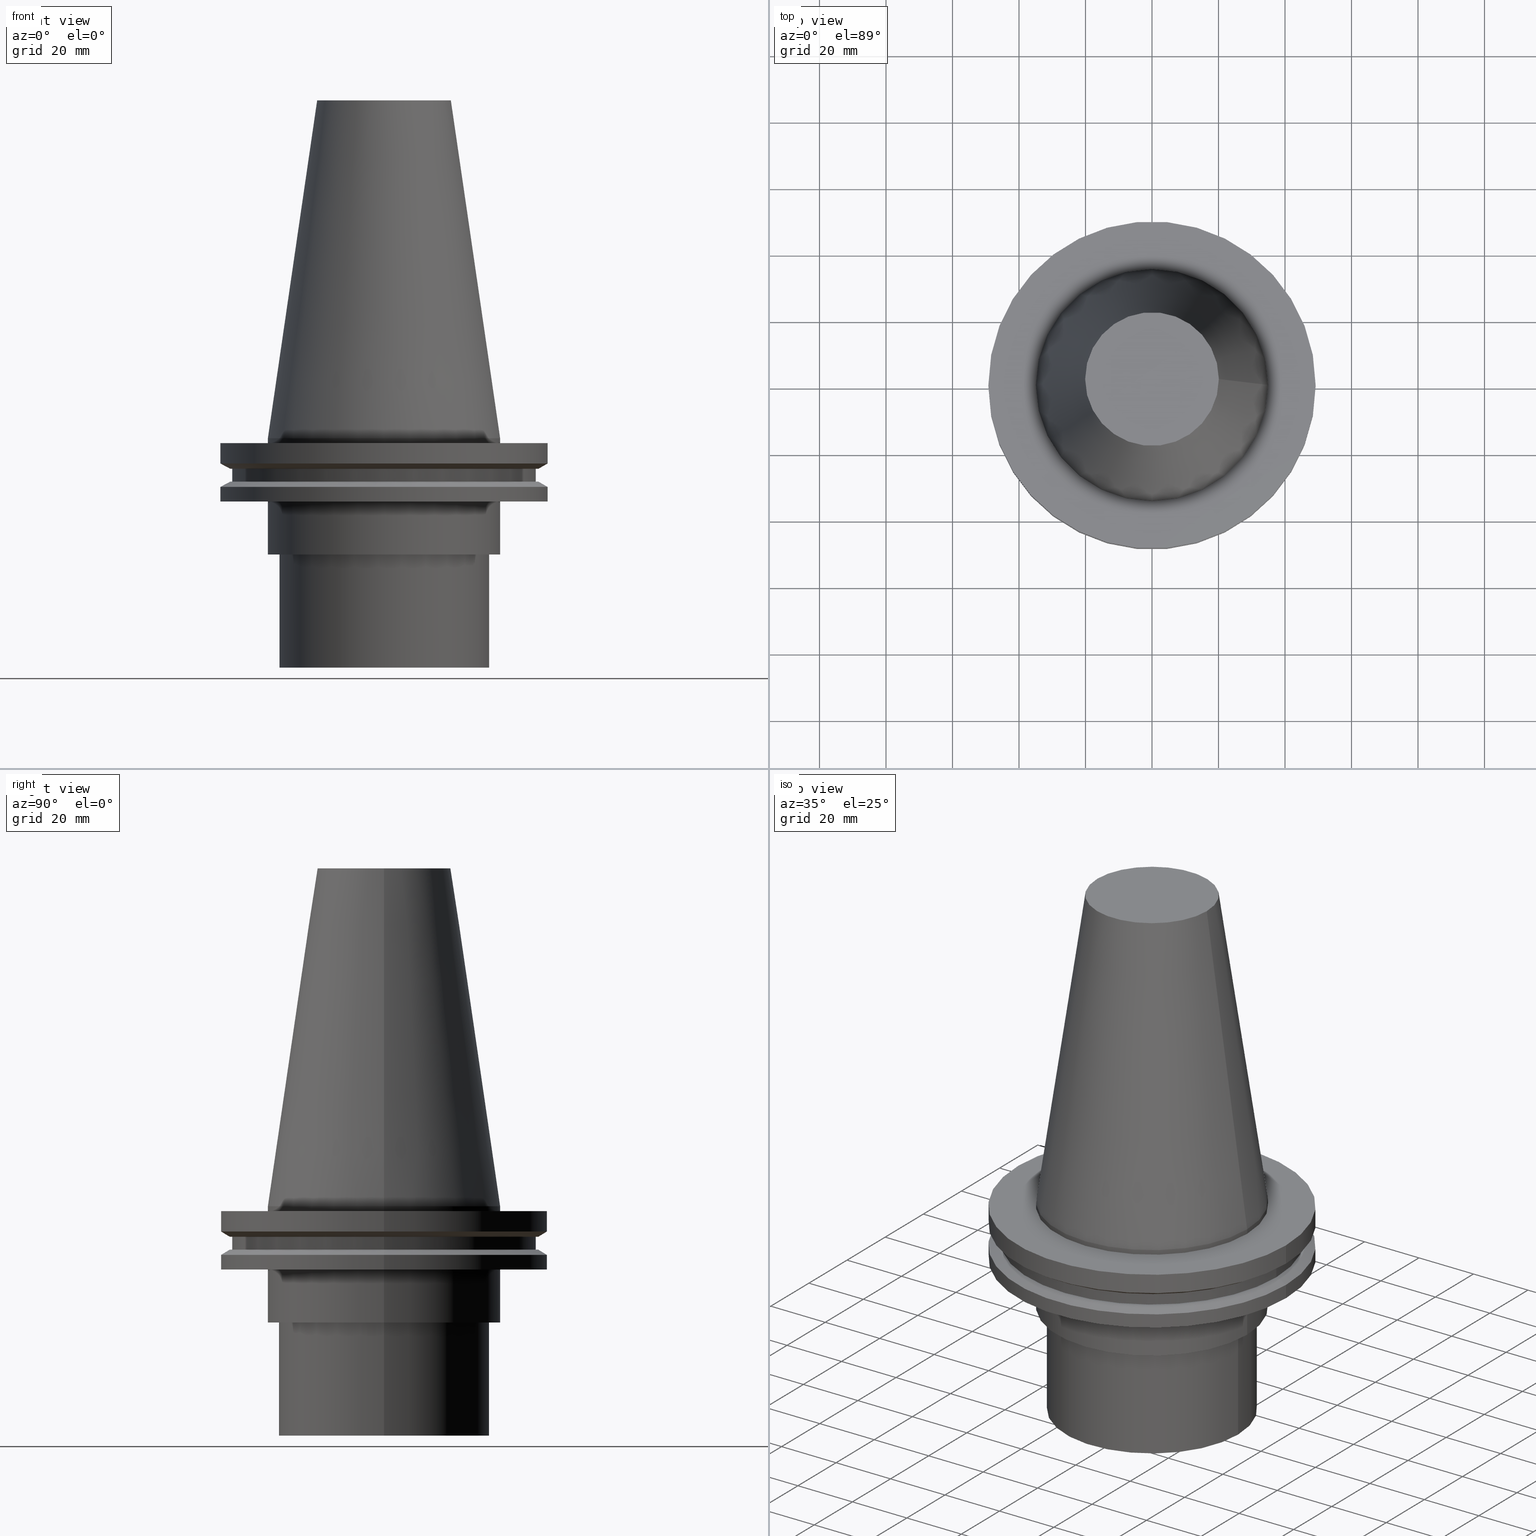
[diagram: canonical four-view strip — front | top / right | iso, engineering-drawing reading convention]
A machine part, canonical four-view strip (front | top / right | iso — engineering-drawing reading convention). The complete STEP part file that produces these views, byte-faithful:
ISO-10303-21;
HEADER;
FILE_DESCRIPTION (( 'STEP AP203' ),
    '1' );
FILE_NAME ('11.326.662.stp',
    '2022-03-09T14:52:34',
    ( '' ),
    ( '' ),
    'SwSTEP 2.0',
    'SolidWorks 2021',
    '' );
FILE_SCHEMA (( 'CONFIG_CONTROL_DESIGN' ));
ENDSEC;

DATA;
#1 = DIRECTION ( 'NONE',  ( 0.000000000000000000, 0.000000000000000000, -1.000000000000000000 ) ) ;
#2 = DIRECTION ( 'NONE',  ( 0.000000000000000000, 0.000000000000000000, -1.000000000000000000 ) ) ;
#3 = ADVANCED_FACE ( 'NONE', ( #237, #121 ), #364, .F. ) ;
#4 = COORDINATED_UNIVERSAL_TIME_OFFSET ( 6, 0, .BEHIND. ) ;
#5 = PLANE ( 'NONE',  #170 ) ;
#6 = AXIS2_PLACEMENT_3D ( 'NONE', #171, #258, #19 ) ;
#7 = AXIS2_PLACEMENT_3D ( 'NONE', #339, #12, #195 ) ;
#8 = DIRECTION ( 'NONE',  ( 1.000000000000000000, 0.000000000000000000, 0.000000000000000000 ) ) ;
#9 = CLOSED_SHELL ( 'NONE', ( #164, #387, #276, #153, #233, #264, #188, #3, #318, #39, #82, #255, #62, #297, #116, #69 ) ) ;
#10 = CARTESIAN_POINT ( 'NONE',  ( 0.000000000000000000, 0.000000000000000000, -9.204999999999991189 ) ) ;
#11 = APPROVAL ( #30, 'UNSPECIFIED' ) ;
#12 = DIRECTION ( 'NONE',  ( -0.000000000000000000, -0.000000000000000000, 1.000000000000000000 ) ) ;
#13 = SECURITY_CLASSIFICATION ( '', '', #248 ) ;
#14 = CONICAL_SURFACE ( 'NONE', #36, 34.92499999999999005, 0.1448138465474119452 ) ;
#15 = FACE_OUTER_BOUND ( 'NONE', #328, .T. ) ;
#16 = VERTEX_POINT ( 'NONE', #137 ) ;
#17 = DIRECTION ( 'NONE',  ( 1.000000000000000000, 0.000000000000000000, 0.000000000000000000 ) ) ;
#18 = LOCAL_TIME ( 8, 52, 34.00000000000000000, #90 ) ;
#19 = DIRECTION ( 'NONE',  ( 1.000000000000000000, 0.000000000000000000, 0.000000000000000000 ) ) ;
#20 = ORIENTED_EDGE ( 'NONE', *, *, #72, .F. ) ;
#21 = DIRECTION ( 'NONE',  ( 1.000000000000000000, 0.000000000000000000, 0.000000000000000000 ) ) ;
#22 = CARTESIAN_POINT ( 'NONE',  ( 31.63500000000000512, 0.000000000000000000, -69.00000000000001421 ) ) ;
#23 = ORIENTED_EDGE ( 'NONE', *, *, #284, .F. ) ;
#24 = PERSON_AND_ORGANIZATION ( #303, #222 ) ;
#25 = AXIS2_PLACEMENT_3D ( 'NONE', #311, #163, #132 ) ;
#26 = ORIENTED_EDGE ( 'NONE', *, *, #352, .T. ) ;
#27 = VERTEX_POINT ( 'NONE', #22 ) ;
#28 = ORIENTED_EDGE ( 'NONE', *, *, #136, .F. ) ;
#29 = EDGE_LOOP ( 'NONE', ( #334 ) ) ;
#30 = APPROVAL_STATUS ( 'not_yet_approved' ) ;
#31 = PLANE ( 'NONE',  #177 ) ;
#32 = SHAPE_DEFINITION_REPRESENTATION ( #329, #274 ) ;
#33 = CC_DESIGN_PERSON_AND_ORGANIZATION_ASSIGNMENT ( #327, #390, ( #52 ) ) ;
#34 = FACE_BOUND ( 'NONE', #267, .T. ) ;
#35 = FACE_OUTER_BOUND ( 'NONE', #169, .T. ) ;
#36 = AXIS2_PLACEMENT_3D ( 'NONE', #373, #220, #156 ) ;
#37 = COORDINATED_UNIVERSAL_TIME_OFFSET ( 6, 0, .BEHIND. ) ;
#38 = CARTESIAN_POINT ( 'NONE',  ( 0.000000000000000000, 0.000000000000000000, -13.05499999999999794 ) ) ;
#39 = ADVANCED_FACE ( 'NONE', ( #178, #180 ), #302, .F. ) ;
#40 = PERSON_AND_ORGANIZATION_ROLE ( 'creator' ) ;
#41 = DIRECTION ( 'NONE',  ( -0.000000000000000000, -0.000000000000000000, 1.000000000000000000 ) ) ;
#42 = DIRECTION ( 'NONE',  ( -1.000000000000000000, 0.000000000000000000, -0.000000000000000000 ) ) ;
#43 = CIRCLE ( 'NONE', #176, 34.92499999999999005 ) ;
#44 = DIRECTION ( 'NONE',  ( 1.000000000000000000, 0.000000000000000000, 0.000000000000000000 ) ) ;
#45 = DIRECTION ( 'NONE',  ( 1.000000000000000000, 0.000000000000000000, 0.000000000000000000 ) ) ;
#46 = CARTESIAN_POINT ( 'NONE',  ( 0.000000000000000000, 0.000000000000000000, 101.5999999999999943 ) ) ;
#47 = AXIS2_PLACEMENT_3D ( 'NONE', #241, #357, #205 ) ;
#48 = DIRECTION ( 'NONE',  ( 0.000000000000000000, -0.000000000000000000, 1.000000000000000000 ) ) ;
#49 = ORIENTED_EDGE ( 'NONE', *, *, #213, .F. ) ;
#50 = APPLICATION_PROTOCOL_DEFINITION ( 'international standard', 'config_control_design', 1994, #80 ) ;
#51 = EDGE_LOOP ( 'NONE', ( #91 ) ) ;
#52 = PRODUCT ( '11.326.662', '11.326.662', '', ( #335 ) ) ;
#53 = CIRCLE ( 'NONE', #360, 45.64500000000000313 ) ;
#54 = CARTESIAN_POINT ( 'NONE',  ( 46.43919780457007818, 0.000000000000000000, -9.204999999999991189 ) ) ;
#55 = DIRECTION ( 'NONE',  ( 0.000000000000000000, 0.000000000000000000, -1.000000000000000000 ) ) ;
#56 = DATE_AND_TIME ( #211, #18 ) ;
#57 = EDGE_LOOP ( 'NONE', ( #28 ) ) ;
#58 = DIRECTION ( 'NONE',  ( 1.000000000000000000, 0.000000000000000000, 0.000000000000000000 ) ) ;
#59 = PERSON_AND_ORGANIZATION ( #303, #222 ) ;
#60 = AXIS2_PLACEMENT_3D ( 'NONE', #351, #167, #201 ) ;
#61 = FACE_OUTER_BOUND ( 'NONE', #212, .T. ) ;
#62 = ADVANCED_FACE ( 'NONE', ( #183, #305 ), #31, .F. ) ;
#63 = UNCERTAINTY_MEASURE_WITH_UNIT (LENGTH_MEASURE( 1.000000000000000082E-05 ), #304, 'distance_accuracy_value', 'NONE');
#64 = FACE_OUTER_BOUND ( 'NONE', #262, .T. ) ;
#65 = APPROVAL_DATE_TIME ( #221, #86 ) ;
#66 = DIRECTION ( 'NONE',  ( 1.000000000000000000, 0.000000000000000000, 0.000000000000000000 ) ) ;
#67 = CC_DESIGN_SECURITY_CLASSIFICATION ( #13, ( #362 ) ) ;
#68 = DIRECTION ( 'NONE',  ( -0.000000000000000000, -0.000000000000000000, 1.000000000000000000 ) ) ;
#69 = ADVANCED_FACE ( 'NONE', ( #219 ), #5, .F. ) ;
#70 = DIRECTION ( 'NONE',  ( 1.000000000000000000, 0.000000000000000000, 0.000000000000000000 ) ) ;
#71 = DIRECTION ( 'NONE',  ( 1.000000000000000000, 0.000000000000000000, 0.000000000000000000 ) ) ;
#72 = EDGE_CURVE ( 'NONE', #165, #165, #306, .T. ) ;
#73 = VERTEX_POINT ( 'NONE', #166 ) ;
#74 = AXIS2_PLACEMENT_3D ( 'NONE', #292, #48, #21 ) ;
#75 = PLANE ( 'NONE',  #140 ) ;
#76 = AXIS2_PLACEMENT_3D ( 'NONE', #273, #93, #58 ) ;
#77 = FACE_OUTER_BOUND ( 'NONE', #29, .T. ) ;
#78 = AXIS2_PLACEMENT_3D ( 'NONE', #149, #55, #391 ) ;
#79 = DIRECTION ( 'NONE',  ( 0.000000000000000000, 0.000000000000000000, -1.000000000000000000 ) ) ;
#80 = APPLICATION_CONTEXT ( 'configuration controlled 3d designs of mechanical parts and assemblies' ) ;
#81 = ORIENTED_EDGE ( 'NONE', *, *, #370, .F. ) ;
#82 = ADVANCED_FACE ( 'NONE', ( #346, #377 ), #245, .T. ) ;
#83 = AXIS2_PLACEMENT_3D ( 'NONE', #46, #288, #347 ) ;
#84 = VERTEX_POINT ( 'NONE', #363 ) ;
#85 = ORIENTED_EDGE ( 'NONE', *, *, #111, .T. ) ;
#86 = APPROVAL ( #94, 'UNSPECIFIED' ) ;
#87 = CARTESIAN_POINT ( 'NONE',  ( 46.43919780457007818, 0.000000000000000000, -13.05499999999999794 ) ) ;
#88 = ORIENTED_EDGE ( 'NONE', *, *, #224, .T. ) ;
#89 = CIRCLE ( 'NONE', #106, 34.92499999999999716 ) ;
#90 = COORDINATED_UNIVERSAL_TIME_OFFSET ( 6, 0, .BEHIND. ) ;
#91 = ORIENTED_EDGE ( 'NONE', *, *, #284, .T. ) ;
#92 = VERTEX_POINT ( 'NONE', #87 ) ;
#93 = DIRECTION ( 'NONE',  ( 0.000000000000000000, -0.000000000000000000, 1.000000000000000000 ) ) ;
#94 = APPROVAL_STATUS ( 'not_yet_approved' ) ;
#95 = EDGE_LOOP ( 'NONE', ( #300 ) ) ;
#96 = CIRCLE ( 'NONE', #102, 49.21499999999998920 ) ;
#97 = DIRECTION ( 'NONE',  ( -0.000000000000000000, -0.000000000000000000, 1.000000000000000000 ) ) ;
#98 = DIRECTION ( 'NONE',  ( 1.000000000000000000, 0.000000000000000000, 0.000000000000000000 ) ) ;
#99 = FACE_OUTER_BOUND ( 'NONE', #209, .T. ) ;
#100 = APPROVAL_ROLE ( '' ) ;
#101 = CARTESIAN_POINT ( 'NONE',  ( 0.000000000000000000, 0.000000000000000000, -7.602389855251287187 ) ) ;
#102 = AXIS2_PLACEMENT_3D ( 'NONE', #261, #196, #383 ) ;
#103 = FACE_OUTER_BOUND ( 'NONE', #57, .T. ) ;
#104 = DIRECTION ( 'NONE',  ( 0.000000000000000000, -0.000000000000000000, 1.000000000000000000 ) ) ;
#105 = FACE_OUTER_BOUND ( 'NONE', #254, .T. ) ;
#106 = AXIS2_PLACEMENT_3D ( 'NONE', #215, #41, #8 ) ;
#107 = DESIGN_CONTEXT ( 'detailed design', #80, 'design' ) ;
#108 = CYLINDRICAL_SURFACE ( 'NONE', #251, 49.21499999999998920 ) ;
#109 = EDGE_LOOP ( 'NONE', ( #23 ) ) ;
#110 = PLANE ( 'NONE',  #345 ) ;
#111 = EDGE_CURVE ( 'NONE', #73, #73, #340, .T. ) ;
#112 = ORIENTED_EDGE ( 'NONE', *, *, #224, .F. ) ;
#113 = CIRCLE ( 'NONE', #312, 49.21500000000000341 ) ;
#114 =( NAMED_UNIT ( * ) PLANE_ANGLE_UNIT ( ) SI_UNIT ( $, .RADIAN. ) );
#115 = EDGE_LOOP ( 'NONE', ( #26 ) ) ;
#116 = ADVANCED_FACE ( 'NONE', ( #64, #35 ), #308, .T. ) ;
#117 = ORIENTED_EDGE ( 'NONE', *, *, #200, .T. ) ;
#118 = APPROVAL_ROLE ( '' ) ;
#119 = EDGE_LOOP ( 'NONE', ( #367 ) ) ;
#120 = AXIS2_PLACEMENT_3D ( 'NONE', #283, #226, #319 ) ;
#121 = FACE_OUTER_BOUND ( 'NONE', #386, .T. ) ;
#122 = CALENDAR_DATE ( 2022, 9, 3 ) ;
#123 = ORIENTED_EDGE ( 'NONE', *, *, #146, .F. ) ;
#124 = PERSON_AND_ORGANIZATION_ROLE ( 'design_supplier' ) ;
#125 = DIRECTION ( 'NONE',  ( -0.000000000000000000, -0.000000000000000000, 1.000000000000000000 ) ) ;
#126 = CIRCLE ( 'NONE', #60, 20.10819343178871321 ) ;
#127 = DIRECTION ( 'NONE',  ( -0.000000000000000000, -0.000000000000000000, 1.000000000000000000 ) ) ;
#128 = CC_DESIGN_PERSON_AND_ORGANIZATION_ASSIGNMENT ( #338, #307, ( #13 ) ) ;
#129 = DIRECTION ( 'NONE',  ( 1.000000000000000000, 0.000000000000000000, 0.000000000000000000 ) ) ;
#130 = DIRECTION ( 'NONE',  ( -0.000000000000000000, -0.000000000000000000, 1.000000000000000000 ) ) ;
#131 = LOCAL_TIME ( 8, 52, 34.00000000000000000, #372 ) ;
#132 = DIRECTION ( 'NONE',  ( 1.000000000000000000, 0.000000000000000000, 0.000000000000000000 ) ) ;
#133 = AXIS2_PLACEMENT_3D ( 'NONE', #247, #97, #189 ) ;
#134 = CARTESIAN_POINT ( 'NONE',  ( 31.63500000000000512, 0.000000000000000000, -35.00000000000000000 ) ) ;
#135 = EDGE_LOOP ( 'NONE', ( #123 ) ) ;
#136 = EDGE_CURVE ( 'NONE', #16, #16, #317, .T. ) ;
#137 = CARTESIAN_POINT ( 'NONE',  ( 34.92499999999999005, 0.000000000000000000, 0.000000000000000000 ) ) ;
#138 = DIRECTION ( 'NONE',  ( -0.000000000000000000, -0.000000000000000000, 1.000000000000000000 ) ) ;
#139 = ORIENTED_EDGE ( 'NONE', *, *, #146, .T. ) ;
#140 = AXIS2_PLACEMENT_3D ( 'NONE', #199, #104, #45 ) ;
#141 = EDGE_CURVE ( 'NONE', #256, #256, #376, .T. ) ;
#142 = FACE_OUTER_BOUND ( 'NONE', #268, .T. ) ;
#143 = ORIENTED_EDGE ( 'NONE', *, *, #141, .T. ) ;
#144 = DIRECTION ( 'NONE',  ( -0.000000000000000000, -0.000000000000000000, 1.000000000000000000 ) ) ;
#145 = EDGE_LOOP ( 'NONE', ( #49 ) ) ;
#146 = EDGE_CURVE ( 'NONE', #333, #333, #89, .T. ) ;
#147 = DATE_AND_TIME ( #359, #381 ) ;
#148 = EDGE_LOOP ( 'NONE', ( #85 ) ) ;
#149 = CARTESIAN_POINT ( 'NONE',  ( 0.000000000000000000, 45.64500000000000313, -13.05499999999999794 ) ) ;
#150 = CARTESIAN_POINT ( 'NONE',  ( 45.64500000000000313, 0.000000000000000000, -9.204999999999991189 ) ) ;
#151 = ORIENTED_EDGE ( 'NONE', *, *, #326, .T. ) ;
#152 = CIRCLE ( 'NONE', #120, 46.43919780457007818 ) ;
#153 = ADVANCED_FACE ( 'NONE', ( #343, #252 ), #371, .T. ) ;
#154 = CARTESIAN_POINT ( 'NONE',  ( 34.92499999999999716, 0.000000000000000000, -35.00000000000000000 ) ) ;
#155 = CARTESIAN_POINT ( 'NONE',  ( 0.000000000000000000, 49.21499999999999631, -1.499999999999992895 ) ) ;
#156 = DIRECTION ( 'NONE',  ( -1.000000000000000000, 0.000000000000000000, 0.000000000000000000 ) ) ;
#157 = DATE_TIME_ROLE ( 'classification_date' ) ;
#158 = CARTESIAN_POINT ( 'NONE',  ( 0.000000000000000000, 0.000000000000000000, 0.000000000000000000 ) ) ;
#159 = CC_DESIGN_PERSON_AND_ORGANIZATION_ASSIGNMENT ( #366, #124, ( #362 ) ) ;
#160 = AXIS2_PLACEMENT_3D ( 'NONE', #342, #68, #66 ) ;
#161 = DIRECTION ( 'NONE',  ( -1.000000000000000000, 0.000000000000000000, -0.000000000000000000 ) ) ;
#162 = DIRECTION ( 'NONE',  ( 1.000000000000000000, 0.000000000000000000, 0.000000000000000000 ) ) ;
#163 = DIRECTION ( 'NONE',  ( -0.000000000000000000, -0.000000000000000000, 1.000000000000000000 ) ) ;
#164 = ADVANCED_FACE ( 'NONE', ( #34, #61 ), #14, .T. ) ;
#165 = VERTEX_POINT ( 'NONE', #134 ) ;
#166 = CARTESIAN_POINT ( 'NONE',  ( 49.21499999999999631, 0.000000000000000000, -1.499999999999987566 ) ) ;
#167 = DIRECTION ( 'NONE',  ( -0.000000000000000000, -0.000000000000000000, 1.000000000000000000 ) ) ;
#168 = FACE_OUTER_BOUND ( 'NONE', #119, .T. ) ;
#169 = EDGE_LOOP ( 'NONE', ( #151 ) ) ;
#170 = AXIS2_PLACEMENT_3D ( 'NONE', #309, #187, #129 ) ;
#171 = CARTESIAN_POINT ( 'NONE',  ( 0.000000000000000000, 0.000000000000000000, -19.04999999999999716 ) ) ;
#172 = CARTESIAN_POINT ( 'NONE',  ( 34.92499999999999005, 0.000000000000000000, -1.499999999999987566 ) ) ;
#173 = EDGE_LOOP ( 'NONE', ( #139 ) ) ;
#174 = PERSON_AND_ORGANIZATION ( #303, #222 ) ;
#175 = ORIENTED_EDGE ( 'NONE', *, *, #279, .F. ) ;
#176 = AXIS2_PLACEMENT_3D ( 'NONE', #280, #125, #218 ) ;
#177 = AXIS2_PLACEMENT_3D ( 'NONE', #155, #1, #161 ) ;
#178 = FACE_OUTER_BOUND ( 'NONE', #109, .T. ) ;
#179 = DATE_TIME_ROLE ( 'creation_date' ) ;
#180 = FACE_BOUND ( 'NONE', #389, .T. ) ;
#181 = CC_DESIGN_DATE_AND_TIME_ASSIGNMENT ( #190, #157, ( #13 ) ) ;
#182 = CARTESIAN_POINT ( 'NONE',  ( 45.64500000000000313, 0.000000000000000000, -13.05499999999999794 ) ) ;
#183 = FACE_BOUND ( 'NONE', #145, .T. ) ;
#184 = APPLICATION_CONTEXT ( 'configuration controlled 3d designs of mechanical parts and assemblies' ) ;
#185 = AXIS2_PLACEMENT_3D ( 'NONE', #289, #138, #71 ) ;
#186 = PERSON_AND_ORGANIZATION ( #303, #222 ) ;
#187 = DIRECTION ( 'NONE',  ( 0.000000000000000000, -0.000000000000000000, 1.000000000000000000 ) ) ;
#188 = ADVANCED_FACE ( 'NONE', ( #191, #99 ), #385, .T. ) ;
#189 = DIRECTION ( 'NONE',  ( 1.000000000000000000, 0.000000000000000000, 0.000000000000000000 ) ) ;
#190 = DATE_AND_TIME ( #214, #239 ) ;
#191 = FACE_BOUND ( 'NONE', #271, .T. ) ;
#192 = AXIS2_PLACEMENT_3D ( 'NONE', #228, #144, #320 ) ;
#193 = CARTESIAN_POINT ( 'NONE',  ( 0.000000000000000000, 0.000000000000000000, -14.65761014474876944 ) ) ;
#194 = DATE_AND_TIME ( #122, #131 ) ;
#195 = DIRECTION ( 'NONE',  ( 1.000000000000000000, 0.000000000000000000, 0.000000000000000000 ) ) ;
#196 = DIRECTION ( 'NONE',  ( -0.000000000000000000, -0.000000000000000000, 1.000000000000000000 ) ) ;
#197 = FACE_OUTER_BOUND ( 'NONE', #291, .T. ) ;
#198 = AXIS2_PLACEMENT_3D ( 'NONE', #158, #278, #315 ) ;
#199 = CARTESIAN_POINT ( 'NONE',  ( 0.000000000000000000, 34.92499999999999716, -35.00000000000000000 ) ) ;
#200 = EDGE_CURVE ( 'NONE', #92, #92, #210, .T. ) ;
#201 = DIRECTION ( 'NONE',  ( 1.000000000000000000, 0.000000000000000000, 0.000000000000000000 ) ) ;
#202 = CYLINDRICAL_SURFACE ( 'NONE', #83, 34.92499999999999005 ) ;
#203 = CC_DESIGN_APPROVAL ( #11, ( #392 ) ) ;
#204 = CARTESIAN_POINT ( 'NONE',  ( 34.92499999999999716, 0.000000000000000000, -19.04999999999999716 ) ) ;
#205 = DIRECTION ( 'NONE',  ( 1.000000000000000000, 0.000000000000000000, 0.000000000000000000 ) ) ;
#206 = ORIENTED_EDGE ( 'NONE', *, *, #136, .T. ) ;
#207 = VERTEX_POINT ( 'NONE', #234 ) ;
#208 = APPROVAL_PERSON_ORGANIZATION ( #59, #337, #374 ) ;
#209 = EDGE_LOOP ( 'NONE', ( #379 ) ) ;
#210 = CIRCLE ( 'NONE', #217, 46.43919780457007818 ) ;
#211 = CALENDAR_DATE ( 2022, 9, 3 ) ;
#212 = EDGE_LOOP ( 'NONE', ( #206 ) ) ;
#213 = EDGE_CURVE ( 'NONE', #393, #393, #43, .T. ) ;
#214 = CALENDAR_DATE ( 2022, 9, 3 ) ;
#215 = CARTESIAN_POINT ( 'NONE',  ( 0.000000000000000000, 0.000000000000000000, -35.00000000000000000 ) ) ;
#216 = EDGE_CURVE ( 'NONE', #269, #269, #53, .T. ) ;
#217 = AXIS2_PLACEMENT_3D ( 'NONE', #38, #275, #162 ) ;
#218 = DIRECTION ( 'NONE',  ( 1.000000000000000000, 0.000000000000000000, 0.000000000000000000 ) ) ;
#219 = FACE_OUTER_BOUND ( 'NONE', #296, .T. ) ;
#220 = DIRECTION ( 'NONE',  ( 0.000000000000000000, 0.000000000000000000, -1.000000000000000000 ) ) ;
#221 = DATE_AND_TIME ( #314, #257 ) ;
#222 = ORGANIZATION ( 'UNSPECIFIED', 'UNSPECIFIED', '' ) ;
#223 = DIRECTION ( 'NONE',  ( -0.000000000000000000, -0.000000000000000000, 1.000000000000000000 ) ) ;
#224 = EDGE_CURVE ( 'NONE', #301, #301, #240, .T. ) ;
#225 = FACE_OUTER_BOUND ( 'NONE', #95, .T. ) ;
#226 = DIRECTION ( 'NONE',  ( -0.000000000000000000, -0.000000000000000000, 1.000000000000000000 ) ) ;
#227 = EDGE_CURVE ( 'NONE', #299, #299, #113, .T. ) ;
#228 = CARTESIAN_POINT ( 'NONE',  ( 0.000000000000000000, 0.000000000000000000, 101.5999999999999943 ) ) ;
#229 = DIRECTION ( 'NONE',  ( -0.000000000000000000, -0.000000000000000000, 1.000000000000000000 ) ) ;
#230 = FACE_OUTER_BOUND ( 'NONE', #395, .T. ) ;
#231 = ORIENTED_EDGE ( 'NONE', *, *, #72, .T. ) ;
#232 =( NAMED_UNIT ( * ) SI_UNIT ( $, .STERADIAN. ) SOLID_ANGLE_UNIT ( ) );
#233 = ADVANCED_FACE ( 'NONE', ( #197, #382 ), #253, .F. ) ;
#234 = CARTESIAN_POINT ( 'NONE',  ( 49.21499999999998920, 0.000000000000000000, -14.65761014474876944 ) ) ;
#235 = ORIENTED_EDGE ( 'NONE', *, *, #141, .F. ) ;
#236 = APPLICATION_PROTOCOL_DEFINITION ( 'international standard', 'config_control_design', 1994, #184 ) ;
#237 = FACE_BOUND ( 'NONE', #243, .T. ) ;
#238 = COORDINATED_UNIVERSAL_TIME_OFFSET ( 6, 0, .BEHIND. ) ;
#239 = LOCAL_TIME ( 8, 52, 34.00000000000000000, #37 ) ;
#240 = CIRCLE ( 'NONE', #272, 45.64500000000000313 ) ;
#241 = CARTESIAN_POINT ( 'NONE',  ( 0.000000000000000000, 0.000000000000000000, 0.000000000000000000 ) ) ;
#242 = APPROVAL_DATE_TIME ( #194, #337 ) ;
#243 = EDGE_LOOP ( 'NONE', ( #325 ) ) ;
#244 = CARTESIAN_POINT ( 'NONE',  ( 0.000000000000000000, 0.000000000000000000, -13.05499999999999794 ) ) ;
#245 = CONICAL_SURFACE ( 'NONE', #133, 46.43919780457007818, 1.047197551196575205 ) ;
#246 = DIRECTION ( 'NONE',  ( 1.000000000000000000, 0.000000000000000000, 0.000000000000000000 ) ) ;
#247 = CARTESIAN_POINT ( 'NONE',  ( 0.000000000000000000, 0.000000000000000000, -9.204999999999991189 ) ) ;
#248 = SECURITY_CLASSIFICATION_LEVEL ( 'unclassified' ) ;
#249 = CC_DESIGN_DATE_AND_TIME_ASSIGNMENT ( #56, #179, ( #392 ) ) ;
#250 = CARTESIAN_POINT ( 'NONE',  ( 0.000000000000000000, 0.000000000000000000, -35.00000000000000000 ) ) ;
#251 = AXIS2_PLACEMENT_3D ( 'NONE', #263, #229, #17 ) ;
#252 = FACE_OUTER_BOUND ( 'NONE', #173, .T. ) ;
#253 = PLANE ( 'NONE',  #74 ) ;
#254 = EDGE_LOOP ( 'NONE', ( #112 ) ) ;
#255 = ADVANCED_FACE ( 'NONE', ( #77, #230 ), #321, .T. ) ;
#256 = VERTEX_POINT ( 'NONE', #266 ) ;
#257 = LOCAL_TIME ( 8, 52, 34.00000000000000000, #4 ) ;
#258 = DIRECTION ( 'NONE',  ( -0.000000000000000000, -0.000000000000000000, 1.000000000000000000 ) ) ;
#259 = AXIS2_PLACEMENT_3D ( 'NONE', #193, #2, #313 ) ;
#260 = ORIENTED_EDGE ( 'NONE', *, *, #352, .F. ) ;
#261 = CARTESIAN_POINT ( 'NONE',  ( 0.000000000000000000, 0.000000000000000000, -14.65761014474876944 ) ) ;
#262 = EDGE_LOOP ( 'NONE', ( #20 ) ) ;
#263 = CARTESIAN_POINT ( 'NONE',  ( 0.000000000000000000, 0.000000000000000000, 101.5999999999999943 ) ) ;
#264 = ADVANCED_FACE ( 'NONE', ( #142, #15 ), #108, .T. ) ;
#265 = EDGE_LOOP ( 'NONE', ( #260 ) ) ;
#266 = CARTESIAN_POINT ( 'NONE',  ( 49.21499999999998920, 0.000000000000000000, -19.04999999999999716 ) ) ;
#267 = EDGE_LOOP ( 'NONE', ( #175 ) ) ;
#268 = EDGE_LOOP ( 'NONE', ( #81 ) ) ;
#269 = VERTEX_POINT ( 'NONE', #182 ) ;
#270 = CC_DESIGN_APPROVAL ( #337, ( #362 ) ) ;
#271 = EDGE_LOOP ( 'NONE', ( #294 ) ) ;
#272 = AXIS2_PLACEMENT_3D ( 'NONE', #10, #130, #375 ) ;
#273 = CARTESIAN_POINT ( 'NONE',  ( 0.000000000000000000, 46.43919780457007818, -9.204999999999998295 ) ) ;
#274 = ADVANCED_BREP_SHAPE_REPRESENTATION ( '11.326.662', ( #286, #47 ), #394 ) ;
#275 = DIRECTION ( 'NONE',  ( -0.000000000000000000, -0.000000000000000000, 1.000000000000000000 ) ) ;
#276 = ADVANCED_FACE ( 'NONE', ( #378, #350 ), #75, .F. ) ;
#277 = CARTESIAN_POINT ( 'NONE',  ( 0.000000000000000000, 0.000000000000000000, 0.000000000000000000 ) ) ;
#278 = DIRECTION ( 'NONE',  ( -0.000000000000000000, -0.000000000000000000, 1.000000000000000000 ) ) ;
#279 = EDGE_CURVE ( 'NONE', #84, #84, #126, .T. ) ;
#280 = CARTESIAN_POINT ( 'NONE',  ( 0.000000000000000000, 0.000000000000000000, -1.499999999999987566 ) ) ;
#281 = DIRECTION ( 'NONE',  ( -0.000000000000000000, -0.000000000000000000, 1.000000000000000000 ) ) ;
#282 = AXIS2_PLACEMENT_3D ( 'NONE', #348, #287, #44 ) ;
#283 = CARTESIAN_POINT ( 'NONE',  ( 0.000000000000000000, 0.000000000000000000, -9.204999999999991189 ) ) ;
#284 = EDGE_CURVE ( 'NONE', #330, #330, #152, .T. ) ;
#285 = ORIENTED_EDGE ( 'NONE', *, *, #279, .T. ) ;
#286 = MANIFOLD_SOLID_BREP ( 'CKB', #9 ) ;
#287 = DIRECTION ( 'NONE',  ( -0.000000000000000000, -0.000000000000000000, 1.000000000000000000 ) ) ;
#288 = DIRECTION ( 'NONE',  ( -0.000000000000000000, -0.000000000000000000, 1.000000000000000000 ) ) ;
#289 = CARTESIAN_POINT ( 'NONE',  ( 0.000000000000000000, 0.000000000000000000, 101.5999999999999943 ) ) ;
#290 = APPROVAL_PERSON_ORGANIZATION ( #310, #86, #100 ) ;
#291 = EDGE_LOOP ( 'NONE', ( #235 ) ) ;
#292 = CARTESIAN_POINT ( 'NONE',  ( 0.000000000000000000, 49.21499999999998920, -19.04999999999999716 ) ) ;
#293 = VERTEX_POINT ( 'NONE', #204 ) ;
#294 = ORIENTED_EDGE ( 'NONE', *, *, #200, .F. ) ;
#295 = APPROVAL_DATE_TIME ( #147, #11 ) ;
#296 = EDGE_LOOP ( 'NONE', ( #332 ) ) ;
#297 = ADVANCED_FACE ( 'NONE', ( #103, #225 ), #202, .T. ) ;
#298 = CIRCLE ( 'NONE', #282, 31.63500000000000512 ) ;
#299 = VERTEX_POINT ( 'NONE', #354 ) ;
#300 = ORIENTED_EDGE ( 'NONE', *, *, #213, .T. ) ;
#301 = VERTEX_POINT ( 'NONE', #150 ) ;
#302 = PLANE ( 'NONE',  #76 ) ;
#303 = PERSON ( 'UNSPECIFIED', 'UNSPECIFIED', 'UNSPECIFIED', ('UNSPECIFIED'), ('UNSPECIFIED'), ('UNSPECIFIED') ) ;
#304 =( LENGTH_UNIT ( ) NAMED_UNIT ( * ) SI_UNIT ( .MILLI., .METRE. ) );
#305 = FACE_OUTER_BOUND ( 'NONE', #148, .T. ) ;
#306 = CIRCLE ( 'NONE', #380, 31.63500000000000512 ) ;
#307 = PERSON_AND_ORGANIZATION_ROLE ( 'classification_officer' ) ;
#308 = CYLINDRICAL_SURFACE ( 'NONE', #198, 31.63500000000000512 ) ;
#309 = CARTESIAN_POINT ( 'NONE',  ( 0.000000000000000000, 31.63500000000000512, -69.00000000000000000 ) ) ;
#310 = PERSON_AND_ORGANIZATION ( #303, #222 ) ;
#311 = CARTESIAN_POINT ( 'NONE',  ( 0.000000000000000000, 0.000000000000000000, -1.499999999999987566 ) ) ;
#312 = AXIS2_PLACEMENT_3D ( 'NONE', #101, #223, #70 ) ;
#313 = DIRECTION ( 'NONE',  ( -1.000000000000000000, 0.000000000000000000, 0.000000000000000000 ) ) ;
#314 = CALENDAR_DATE ( 2022, 9, 3 ) ;
#315 = DIRECTION ( 'NONE',  ( 1.000000000000000000, 0.000000000000000000, 0.000000000000000000 ) ) ;
#316 = FACE_OUTER_BOUND ( 'NONE', #361, .T. ) ;
#317 = CIRCLE ( 'NONE', #331, 34.92499999999999005 ) ;
#318 = ADVANCED_FACE ( 'NONE', ( #105, #168 ), #323, .T. ) ;
#319 = DIRECTION ( 'NONE',  ( 1.000000000000000000, 0.000000000000000000, 0.000000000000000000 ) ) ;
#320 = DIRECTION ( 'NONE',  ( 1.000000000000000000, 0.000000000000000000, 0.000000000000000000 ) ) ;
#321 = CYLINDRICAL_SURFACE ( 'NONE', #192, 49.21499999999999631 ) ;
#322 = CC_DESIGN_PERSON_AND_ORGANIZATION_ASSIGNMENT ( #24, #388, ( #392 ) ) ;
#323 = CYLINDRICAL_SURFACE ( 'NONE', #185, 45.64500000000000313 ) ;
#324 = APPROVAL_PERSON_ORGANIZATION ( #174, #11, #118 ) ;
#325 = ORIENTED_EDGE ( 'NONE', *, *, #216, .F. ) ;
#326 = EDGE_CURVE ( 'NONE', #27, #27, #298, .T. ) ;
#327 = PERSON_AND_ORGANIZATION ( #303, #222 ) ;
#328 = EDGE_LOOP ( 'NONE', ( #143 ) ) ;
#329 = PRODUCT_DEFINITION_SHAPE ( 'NONE', 'NONE',  #392 ) ;
#330 = VERTEX_POINT ( 'NONE', #54 ) ;
#331 = AXIS2_PLACEMENT_3D ( 'NONE', #277, #281, #246 ) ;
#332 = ORIENTED_EDGE ( 'NONE', *, *, #326, .F. ) ;
#333 = VERTEX_POINT ( 'NONE', #154 ) ;
#334 = ORIENTED_EDGE ( 'NONE', *, *, #111, .F. ) ;
#335 = MECHANICAL_CONTEXT ( 'NONE', #184, 'mechanical' ) ;
#336 = EDGE_LOOP ( 'NONE', ( #358 ) ) ;
#337 = APPROVAL ( #368, 'UNSPECIFIED' ) ;
#338 = PERSON_AND_ORGANIZATION ( #303, #222 ) ;
#339 = CARTESIAN_POINT ( 'NONE',  ( 0.000000000000000000, 0.000000000000000000, -19.04999999999999716 ) ) ;
#340 = CIRCLE ( 'NONE', #25, 49.21499999999999631 ) ;
#341 = DIRECTION ( 'NONE',  ( 1.000000000000000000, 0.000000000000000000, 0.000000000000000000 ) ) ;
#342 = CARTESIAN_POINT ( 'NONE',  ( 0.000000000000000000, 0.000000000000000000, 101.5999999999999943 ) ) ;
#343 = FACE_OUTER_BOUND ( 'NONE', #265, .T. ) ;
#344 = CC_DESIGN_APPROVAL ( #86, ( #13 ) ) ;
#345 = AXIS2_PLACEMENT_3D ( 'NONE', #353, #79, #42 ) ;
#346 = FACE_OUTER_BOUND ( 'NONE', #336, .T. ) ;
#347 = DIRECTION ( 'NONE',  ( 1.000000000000000000, 0.000000000000000000, 0.000000000000000000 ) ) ;
#348 = CARTESIAN_POINT ( 'NONE',  ( 0.000000000000000000, 0.000000000000000000, -69.00000000000001421 ) ) ;
#349 = CIRCLE ( 'NONE', #6, 34.92499999999999716 ) ;
#350 = FACE_OUTER_BOUND ( 'NONE', #135, .T. ) ;
#351 = CARTESIAN_POINT ( 'NONE',  ( 0.000000000000000000, 0.000000000000000000, 101.5999999999999801 ) ) ;
#352 = EDGE_CURVE ( 'NONE', #293, #293, #349, .T. ) ;
#353 = CARTESIAN_POINT ( 'NONE',  ( 0.000000000000000000, 20.10819343178871321, 101.5999999999999943 ) ) ;
#354 = CARTESIAN_POINT ( 'NONE',  ( 49.21500000000000341, 0.000000000000000000, -7.602389855251287187 ) ) ;
#355 = CC_DESIGN_PERSON_AND_ORGANIZATION_ASSIGNMENT ( #186, #40, ( #362 ) ) ;
#356 = ORIENTED_EDGE ( 'NONE', *, *, #227, .T. ) ;
#357 = DIRECTION ( 'NONE',  ( 0.000000000000000000, 0.000000000000000000, 1.000000000000000000 ) ) ;
#358 = ORIENTED_EDGE ( 'NONE', *, *, #227, .F. ) ;
#359 = CALENDAR_DATE ( 2022, 9, 3 ) ;
#360 = AXIS2_PLACEMENT_3D ( 'NONE', #244, #369, #341 ) ;
#361 = EDGE_LOOP ( 'NONE', ( #285 ) ) ;
#362 = PRODUCT_DEFINITION_FORMATION_WITH_SPECIFIED_SOURCE ( 'ANY', '', #52, .NOT_KNOWN. ) ;
#363 = CARTESIAN_POINT ( 'NONE',  ( 20.10819343178871321, 0.000000000000000000, 101.5999999999999801 ) ) ;
#364 = PLANE ( 'NONE',  #78 ) ;
#365 = PRODUCT_RELATED_PRODUCT_CATEGORY ( 'detail', '', ( #52 ) ) ;
#366 = PERSON_AND_ORGANIZATION ( #303, #222 ) ;
#367 = ORIENTED_EDGE ( 'NONE', *, *, #216, .T. ) ;
#368 = APPROVAL_STATUS ( 'not_yet_approved' ) ;
#369 = DIRECTION ( 'NONE',  ( -0.000000000000000000, -0.000000000000000000, 1.000000000000000000 ) ) ;
#370 = EDGE_CURVE ( 'NONE', #207, #207, #96, .T. ) ;
#371 = CYLINDRICAL_SURFACE ( 'NONE', #160, 34.92499999999999716 ) ;
#372 = COORDINATED_UNIVERSAL_TIME_OFFSET ( 6, 0, .BEHIND. ) ;
#373 = CARTESIAN_POINT ( 'NONE',  ( 0.000000000000000000, 0.000000000000000000, 0.000000000000000000 ) ) ;
#374 = APPROVAL_ROLE ( '' ) ;
#375 = DIRECTION ( 'NONE',  ( 1.000000000000000000, 0.000000000000000000, 0.000000000000000000 ) ) ;
#376 = CIRCLE ( 'NONE', #7, 49.21499999999998920 ) ;
#377 = FACE_BOUND ( 'NONE', #51, .T. ) ;
#378 = FACE_BOUND ( 'NONE', #384, .T. ) ;
#379 = ORIENTED_EDGE ( 'NONE', *, *, #370, .T. ) ;
#380 = AXIS2_PLACEMENT_3D ( 'NONE', #250, #127, #98 ) ;
#381 = LOCAL_TIME ( 8, 52, 34.00000000000000000, #238 ) ;
#382 = FACE_BOUND ( 'NONE', #115, .T. ) ;
#383 = DIRECTION ( 'NONE',  ( 1.000000000000000000, 0.000000000000000000, 0.000000000000000000 ) ) ;
#384 = EDGE_LOOP ( 'NONE', ( #231 ) ) ;
#385 = CONICAL_SURFACE ( 'NONE', #259, 49.21499999999998920, 1.047197551196554333 ) ;
#386 = EDGE_LOOP ( 'NONE', ( #117 ) ) ;
#387 = ADVANCED_FACE ( 'NONE', ( #316 ), #110, .F. ) ;
#388 = PERSON_AND_ORGANIZATION_ROLE ( 'creator' ) ;
#389 = EDGE_LOOP ( 'NONE', ( #88 ) ) ;
#390 = PERSON_AND_ORGANIZATION_ROLE ( 'design_owner' ) ;
#391 = DIRECTION ( 'NONE',  ( -1.000000000000000000, 0.000000000000000000, -0.000000000000000000 ) ) ;
#392 = PRODUCT_DEFINITION ( 'UNKNOWN', '', #362, #107 ) ;
#393 = VERTEX_POINT ( 'NONE', #172 ) ;
#394 =( GEOMETRIC_REPRESENTATION_CONTEXT ( 3 ) GLOBAL_UNCERTAINTY_ASSIGNED_CONTEXT ( ( #63 ) ) GLOBAL_UNIT_ASSIGNED_CONTEXT ( ( #304, #114, #232 ) ) REPRESENTATION_CONTEXT ( 'NONE', 'WORKASPACE' ) );
#395 = EDGE_LOOP ( 'NONE', ( #356 ) ) ;
ENDSEC;
END-ISO-10303-21;
